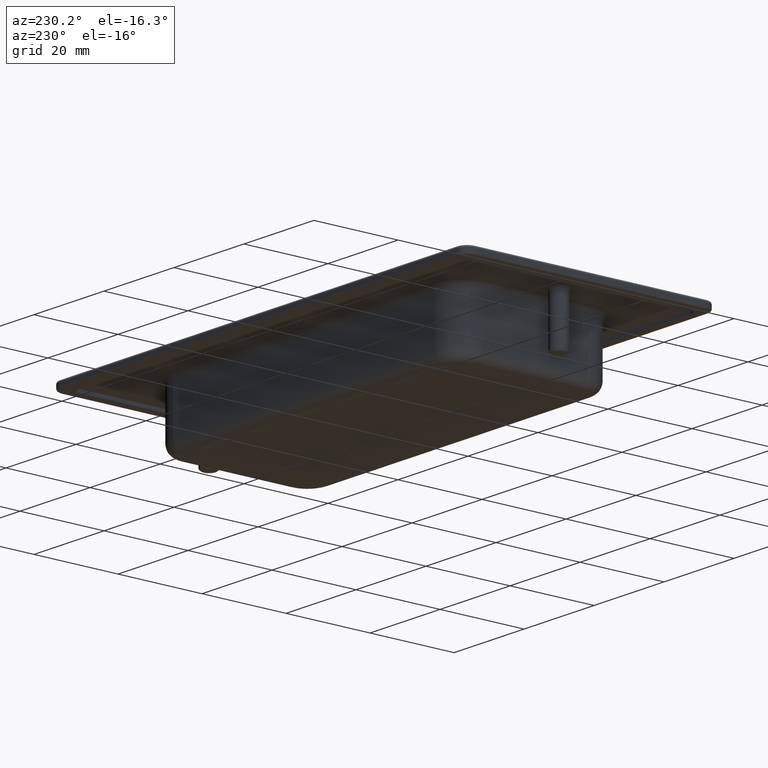
[diagram: clean part render]
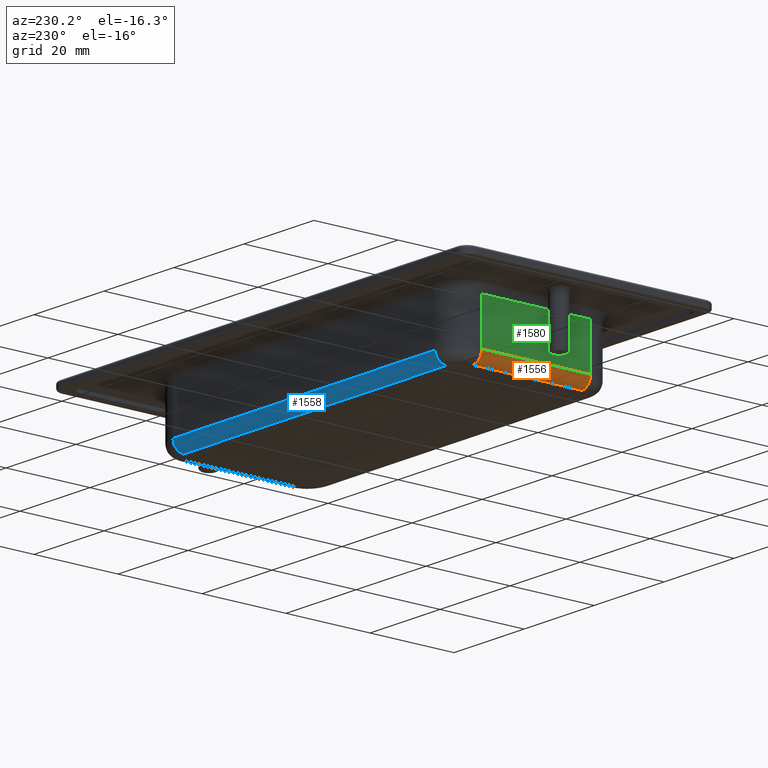
[diagram: same view with three faces highlighted in distinct colors, each labeled with its STEP entity id]
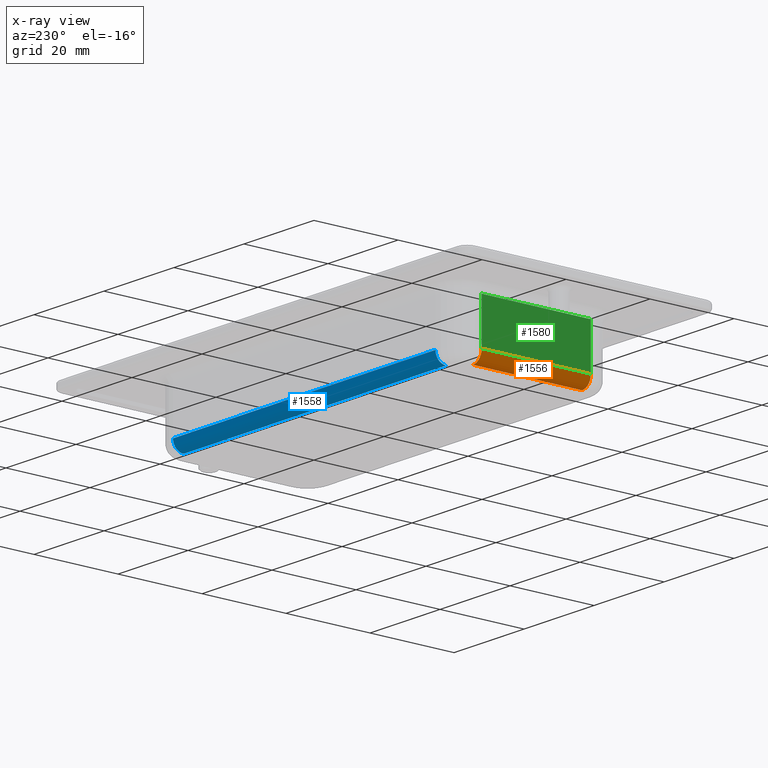
[diagram: x-ray of the same camera — body ghosted, the three highlighted faces saturated]
A machine part, auxiliary view with three faces highlighted in distinct colors.
The next image is the same camera in x-ray (body ghosted, the three faces saturated) — at least one of them is partly hidden behind the body in this view.
Their STEP definitions:

[orange] entity #1556 — the highlighted cylindrical surface (edge-blend (fillet) strip) has radius 2.5 mm, axis along (0, 1, 0).
#52=CYLINDRICAL_SURFACE('',#1754,2.5);
#139=LINE('',#2710,#243);
#140=LINE('',#2711,#244);
#243=VECTOR('',#2221,26.);
#244=VECTOR('',#2222,26.);
#386=FACE_OUTER_BOUND('',#499,.T.);
#499=EDGE_LOOP('',(#1318,#1319,#1320,#1321));
#621=CIRCLE('',#1751,2.49999999999999);
#624=CIRCLE('',#1755,2.5);
#754=VERTEX_POINT('',#2701);
#755=VERTEX_POINT('',#2702);
#756=VERTEX_POINT('',#2707);
#757=VERTEX_POINT('',#2708);
#950=EDGE_CURVE('',#754,#755,#621,.T.);
#953=EDGE_CURVE('',#756,#757,#624,.T.);
#954=EDGE_CURVE('',#757,#755,#139,.T.);
#955=EDGE_CURVE('',#754,#756,#140,.T.);
#1318=ORIENTED_EDGE('',*,*,#953,.T.);
#1319=ORIENTED_EDGE('',*,*,#954,.T.);
#1320=ORIENTED_EDGE('',*,*,#950,.F.);
#1321=ORIENTED_EDGE('',*,*,#955,.T.);
#1556=ADVANCED_FACE('',(#386),#52,.T.);
#1751=AXIS2_PLACEMENT_3D('',#2703,#2211,#2212);
#1754=AXIS2_PLACEMENT_3D('',#2706,#2217,#2218);
#1755=AXIS2_PLACEMENT_3D('',#2709,#2219,#2220);
#2211=DIRECTION('center_axis',(-8.88178419700128E-16,-1.,0.));
#2212=DIRECTION('ref_axis',(-1.,8.88178419700128E-16,0.));
#2217=DIRECTION('center_axis',(0.,1.,0.));
#2218=DIRECTION('ref_axis',(-0.707106781186548,0.,-0.707106781186548));
#2219=DIRECTION('center_axis',(0.,-1.,0.));
#2220=DIRECTION('ref_axis',(-1.,0.,0.));
#2221=DIRECTION('',(0.,-1.,0.));
#2222=DIRECTION('',(0.,1.,0.));
#2701=CARTESIAN_POINT('',(-43.5,-13.,-13.5));
#2702=CARTESIAN_POINT('',(-41.,-13.,-16.));
#2703=CARTESIAN_POINT('Origin',(-41.,-13.,-13.5));
#2706=CARTESIAN_POINT('Origin',(-41.,-6.5,-13.5));
#2707=CARTESIAN_POINT('',(-43.5,13.,-13.5));
#2708=CARTESIAN_POINT('',(-41.,13.,-16.));
#2709=CARTESIAN_POINT('Origin',(-41.,13.,-13.5));
#2710=CARTESIAN_POINT('',(-41.,-6.5,-16.));
#2711=CARTESIAN_POINT('',(-43.5,-6.5,-13.5));

[blue] entity #1558 — the highlighted cylindrical surface (edge-blend (fillet) strip) has radius 2.5 mm, axis along (1, 0, 0).
#53=CYLINDRICAL_SURFACE('',#1760,2.5);
#79=LINE('',#2446,#183);
#141=LINE('',#2718,#245);
#183=VECTOR('',#1905,75.);
#245=VECTOR('',#2233,75.);
#388=FACE_OUTER_BOUND('',#501,.T.);
#501=EDGE_LOOP('',(#1326,#1327,#1328,#1329));
#614=CIRCLE('',#1740,2.5);
#625=CIRCLE('',#1757,2.50000000000001);
#680=VERTEX_POINT('',#2443);
#681=VERTEX_POINT('',#2445);
#748=VERTEX_POINT('',#2681);
#758=VERTEX_POINT('',#2713);
#825=EDGE_CURVE('',#681,#680,#79,.T.);
#940=EDGE_CURVE('',#748,#680,#614,.T.);
#956=EDGE_CURVE('',#681,#758,#625,.T.);
#959=EDGE_CURVE('',#748,#758,#141,.T.);
#1326=ORIENTED_EDGE('',*,*,#940,.F.);
#1327=ORIENTED_EDGE('',*,*,#959,.T.);
#1328=ORIENTED_EDGE('',*,*,#956,.F.);
#1329=ORIENTED_EDGE('',*,*,#825,.T.);
#1558=ADVANCED_FACE('',(#388),#53,.T.);
#1740=AXIS2_PLACEMENT_3D('',#2682,#2186,#2187);
#1757=AXIS2_PLACEMENT_3D('',#2714,#2225,#2226);
#1760=AXIS2_PLACEMENT_3D('',#2717,#2231,#2232);
#1905=DIRECTION('',(1.,0.,0.));
#2186=DIRECTION('center_axis',(1.,0.,0.));
#2187=DIRECTION('ref_axis',(0.,0.,-1.));
#2225=DIRECTION('center_axis',(-1.,0.,0.));
#2226=DIRECTION('ref_axis',(0.,1.,0.));
#2231=DIRECTION('center_axis',(1.,0.,0.));
#2232=DIRECTION('ref_axis',(0.,0.707106781186548,-0.707106781186548));
#2233=DIRECTION('',(-1.,0.,0.));
#2443=CARTESIAN_POINT('',(37.5,19.,-13.5));
#2445=CARTESIAN_POINT('',(-37.5,19.,-13.5));
#2446=CARTESIAN_POINT('',(-18.75,19.,-13.5));
#2681=CARTESIAN_POINT('',(37.5,16.5,-16.));
#2682=CARTESIAN_POINT('Origin',(37.5,16.5,-13.5));
#2713=CARTESIAN_POINT('',(-37.5,16.5,-16.));
#2714=CARTESIAN_POINT('Origin',(-37.5,16.5,-13.5));
#2717=CARTESIAN_POINT('Origin',(-18.75,16.5,-13.5));
#2718=CARTESIAN_POINT('',(-18.75,16.5,-16.));

[green] entity #1580 — the highlighted planar face has unit normal (-1, 0, 0).
#75=LINE('',#2427,#179);
#140=LINE('',#2711,#244);
#158=LINE('',#2790,#262);
#164=LINE('',#2806,#268);
#179=VECTOR('',#1881,26.);
#244=VECTOR('',#2222,26.);
#262=VECTOR('',#2318,10.5);
#268=VECTOR('',#2338,10.5);
#298=PLANE('',#1802);
#410=FACE_OUTER_BOUND('',#523,.T.);
#523=EDGE_LOOP('',(#1422,#1423,#1424,#1425));
#675=VERTEX_POINT('',#2421);
#676=VERTEX_POINT('',#2425);
#754=VERTEX_POINT('',#2701);
#756=VERTEX_POINT('',#2707);
#816=EDGE_CURVE('',#676,#675,#75,.T.);
#955=EDGE_CURVE('',#754,#756,#140,.T.);
#994=EDGE_CURVE('',#754,#675,#158,.T.);
#1002=EDGE_CURVE('',#756,#676,#164,.T.);
#1422=ORIENTED_EDGE('',*,*,#816,.F.);
#1423=ORIENTED_EDGE('',*,*,#1002,.F.);
#1424=ORIENTED_EDGE('',*,*,#955,.F.);
#1425=ORIENTED_EDGE('',*,*,#994,.T.);
#1580=ADVANCED_FACE('',(#410),#298,.T.);
#1802=AXIS2_PLACEMENT_3D('',#2807,#2339,#2340);
#1881=DIRECTION('',(0.,-1.,0.));
#2222=DIRECTION('',(0.,1.,0.));
#2318=DIRECTION('',(0.,0.,1.));
#2338=DIRECTION('',(0.,0.,1.));
#2339=DIRECTION('center_axis',(-1.,0.,0.));
#2340=DIRECTION('ref_axis',(0.,1.,0.));
#2421=CARTESIAN_POINT('',(-43.5,-13.,-3.));
#2425=CARTESIAN_POINT('',(-43.5,13.,-3.));
#2427=CARTESIAN_POINT('',(-43.5,-6.49999999999999,-3.));
#2701=CARTESIAN_POINT('',(-43.5,-13.,-13.5));
#2707=CARTESIAN_POINT('',(-43.5,13.,-13.5));
#2711=CARTESIAN_POINT('',(-43.5,-6.5,-13.5));
#2790=CARTESIAN_POINT('',(-43.5,-13.,-1.8));
#2806=CARTESIAN_POINT('',(-43.5,13.,-1.8));
#2807=CARTESIAN_POINT('Origin',(-43.5,-13.,-1.8));